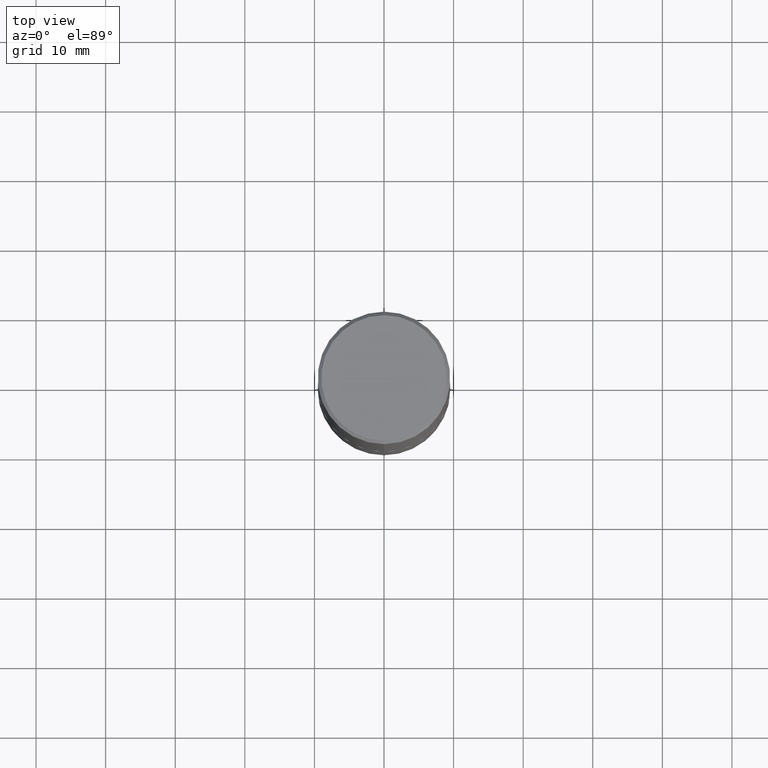
[diagram: clean part render]
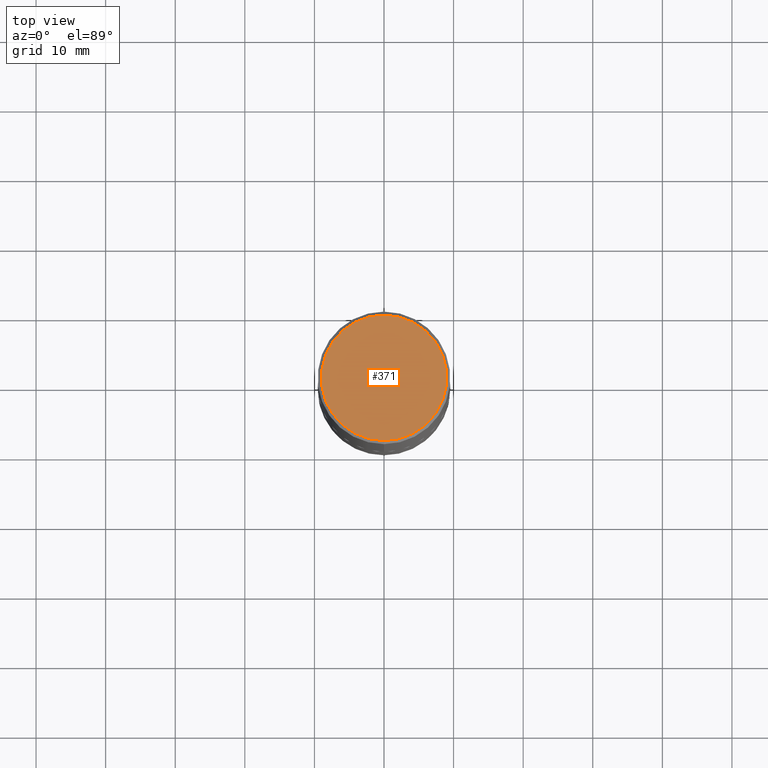
[diagram: same view with one face highlighted and labeled with its STEP entity id]
A machine part, top view. The second image highlights one B-rep face of the part: STEP entity #371.
In plain terms, the highlighted planar face has unit normal (0, -0, -1).
Its self-contained STEP definition (entity closure, byte-faithful):
#43 = VERTEX_POINT ( 'NONE', #110 ) ;
#48 = DIRECTION ( 'NONE',  ( -6.982962677686266711E-15, -1.000000000000000000, 3.491323227660273572E-15 ) ) ;
#54 = AXIS2_PLACEMENT_3D ( 'NONE', #291, #293, #168 ) ;
#57 = EDGE_CURVE ( 'NONE', #178, #43, #156, .T. ) ;
#74 = EDGE_CURVE ( 'NONE', #43, #178, #216, .T. ) ;
#76 = CARTESIAN_POINT ( 'NONE',  ( -4.800560604020196118E-45, 6.853308468732078299E-31, 1.962954450746990007E-16 ) ) ;
#110 = CARTESIAN_POINT ( 'NONE',  ( -2.504081769186607821E-15, -0.3549999999999997602, 1.435715190894094620E-15 ) ) ;
#156 = CIRCLE ( 'NONE', #399, 0.3549999999999997602 ) ;
#168 = DIRECTION ( 'NONE',  ( 6.982962677686265922E-15, 1.000000000000000000, -3.491323227660273177E-15 ) ) ;
#169 = ORIENTED_EDGE ( 'NONE', *, *, #74, .T. ) ;
#171 = CARTESIAN_POINT ( 'NONE',  ( -4.800560604020196118E-45, 6.853308468732078299E-31, 1.962954450746990007E-16 ) ) ;
#178 = VERTEX_POINT ( 'NONE', #224 ) ;
#192 = AXIS2_PLACEMENT_3D ( 'NONE', #171, #208, #344 ) ;
#208 = DIRECTION ( 'NONE',  ( -2.445579214634029192E-29, 3.491323227660272783E-15, 1.000000000000000000 ) ) ;
#216 = CIRCLE ( 'NONE', #192, 0.3549999999999997602 ) ;
#224 = CARTESIAN_POINT ( 'NONE',  ( 2.548781377355486718E-15, 0.3549999999999997602, -1.043124300744697013E-15 ) ) ;
#226 = FACE_OUTER_BOUND ( 'NONE', #235, .T. ) ;
#235 = EDGE_LOOP ( 'NONE', ( #362, #169 ) ) ;
#291 = CARTESIAN_POINT ( 'NONE',  ( 2.478951750578623026E-15, 0.3549999999999997602, -1.141272023282046267E-15 ) ) ;
#293 = DIRECTION ( 'NONE',  ( 2.445579214634028631E-29, -3.491323227660273177E-15, -1.000000000000000000 ) ) ;
#297 = PLANE ( 'NONE',  #54 ) ;
#344 = DIRECTION ( 'NONE',  ( -6.982962677686266711E-15, -1.000000000000000000, 3.491323227660273572E-15 ) ) ;
#362 = ORIENTED_EDGE ( 'NONE', *, *, #57, .T. ) ;
#371 = ADVANCED_FACE ( 'NONE', ( #226 ), #297, .F. ) ;
#376 = DIRECTION ( 'NONE',  ( -2.445579214634029192E-29, 3.491323227660272783E-15, 1.000000000000000000 ) ) ;
#399 = AXIS2_PLACEMENT_3D ( 'NONE', #76, #376, #48 ) ;